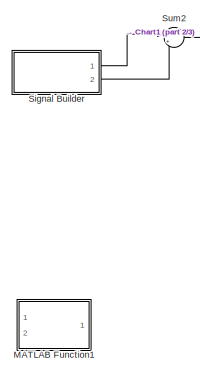
[diagram: root canvas - part 1/3, middle left region]
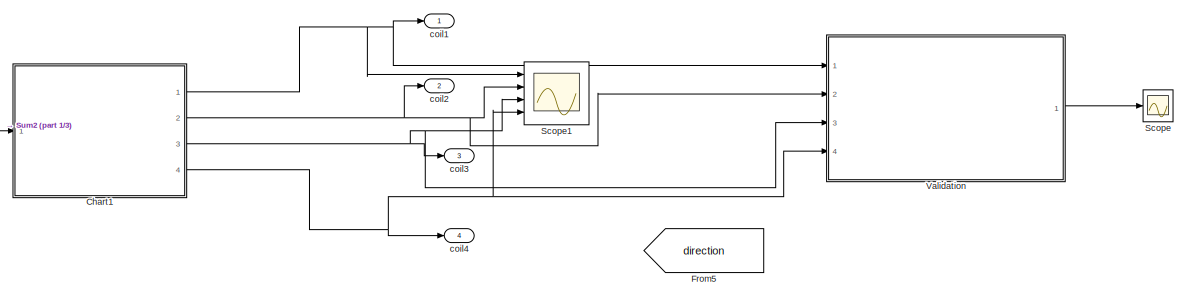
[diagram: root canvas - part 2/3, top center region]
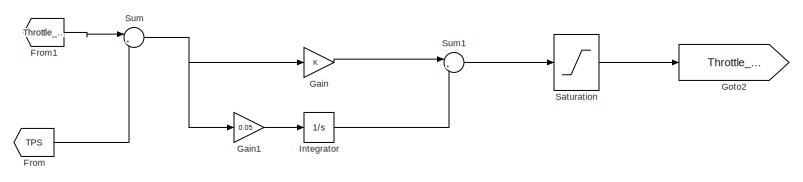
[diagram: root canvas - part 3/3, bottom left region]
MODEL slx_6142f757110b
KIND model
CONFIG AbsTol = auto
CONFIG FixedStep = auto
CONFIG MaxStep = auto
CONFIG MinStep = auto
CONFIG RelTol = 1e-3
CONFIG SampleTimeConstraint = Unconstrained
CONFIG Solver = ode45
CONFIG SolverMode = Auto
CONFIG SolverName = ode45
CONFIG StartTime = 0.0
CONFIG StopTime = 10.0
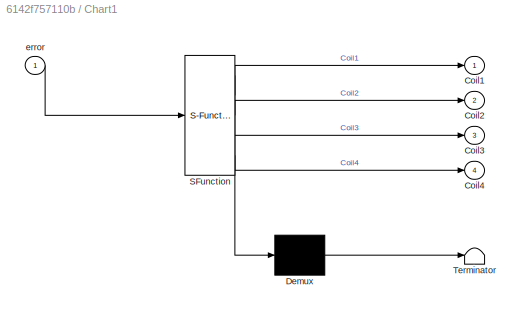
BLOCK [SubSystem] Chart1
  ErrorFcn = Stateflow.Translate.translate
  PermitHierarchicalResolution = ExplicitOnly
  Ports = [1, 4]
  RequestExecContextInheritance = off
  SFBlockType = Chart
  TreatAsAtomicUnit = on
BLOCK [Demux] Chart1/ Demux 
  Outputs = 1
  Ports = [1, 1]
BLOCK [S-Function] Chart1/ SFunction 
  FunctionName = sf_sfun
  PortCounts = [1 5]
  Ports = [1, 5]
  Tag = Stateflow S-Function validate_stepper2 10
BLOCK [Terminator] Chart1/ Terminator 
BLOCK [Outport] Chart1/Coil1
  IconDisplay = Port number
BLOCK [Outport] Chart1/Coil2
  IconDisplay = Port number
  Port = 2
BLOCK [Outport] Chart1/Coil3
  IconDisplay = Port number
  Port = 3
BLOCK [Outport] Chart1/Coil4
  IconDisplay = Port number
  Port = 4
BLOCK [Inport] Chart1/error
  IconDisplay = Port number
BLOCK [From] From
  Commented = on
  GotoTag = TPS
BLOCK [From] From1
  Commented = on
  GotoTag = Throttle_request
BLOCK [From] From5
  GotoTag = direction
BLOCK [Gain] Gain
  Commented = on
  OutDataTypeStr = Inherit: Inherit via internal rule
  ParamDataTypeStr = Inherit: Inherit via internal rule
  SaturateOnIntegerOverflow = off
BLOCK [Gain] Gain1
  Commented = on
  Gain = 0.05
  OutDataTypeStr = Inherit: Inherit via internal rule
  ParamDataTypeStr = Inherit: Inherit via internal rule
  SaturateOnIntegerOverflow = off
BLOCK [Goto] Goto2
  Commented = on
  GotoTag = Throttle_command
BLOCK [Integrator] Integrator
  Commented = on
  Ports = [1, 1]
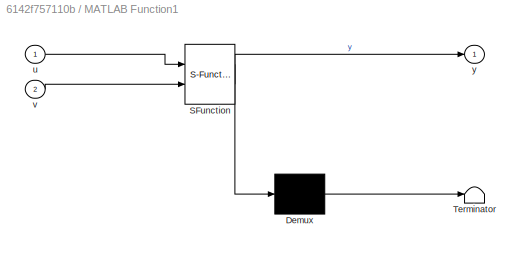
BLOCK [SubSystem] MATLAB Function1
  Commented = on
  ErrorFcn = Stateflow.Translate.translate
  PermitHierarchicalResolution = ExplicitOnly
  Ports = [2, 1]
  RequestExecContextInheritance = off
  SFBlockType = MATLAB Function
  TreatAsAtomicUnit = on
BLOCK [Demux] MATLAB Function1/ Demux 
  Outputs = 1
  Ports = [1, 1]
BLOCK [S-Function] MATLAB Function1/ SFunction 
  FunctionName = sf_sfun
  PortCounts = [2 2]
  Ports = [2, 2]
  Tag = Stateflow S-Function validate_stepper2 12
BLOCK [Terminator] MATLAB Function1/ Terminator 
BLOCK [Inport] MATLAB Function1/u
  IconDisplay = Port number
BLOCK [Inport] MATLAB Function1/v
  IconDisplay = Port number
  Port = 2
BLOCK [Outport] MATLAB Function1/y
  IconDisplay = Port number
BLOCK [Saturate] Saturation
  Commented = on
  InputPortMap = u0
  LowerLimit = 0
  Ports = [1, 1]
  UpperLimit = 90
BLOCK [Scope] Scope
  Floating = off
  NumInputPorts = 1
  Ports = [1]
BLOCK [Scope] Scope1
  Floating = off
  NumInputPorts = 4
  Ports = [4]
  SaveName = ScopeData1
  YMax = 5~5~5~5
  YMin = -5~-5~-5~-5
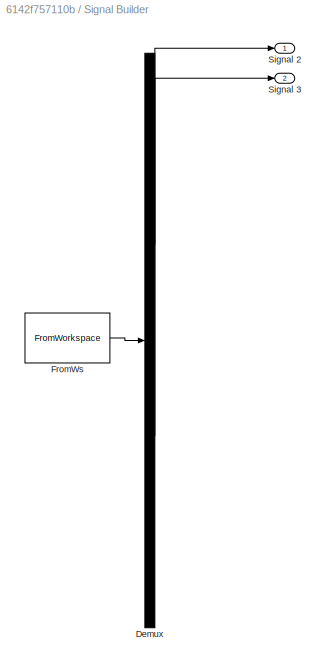
BLOCK [SubSystem] Signal Builder
  ClipboardFcn = sigbuilder_block('clipboard');
  CloseFcn = sigbuilder_block('close');
  ContinueFcn = sigbuilder_block('continue');
  CopyFcn = sigbuilder_block('copy');
  DeleteFcn = sigbuilder_block('delete');
  LoadFcn = sigbuilder_block('load',[8.25 -228 943.5 648 ]);
  MaskHideContents = on
  ModelCloseFcn = sigbuilder_block('modelClose');
  NameChangeFcn = sigbuilder_block('namechange');
  OpenFcn = sigbuilder_block('open',[451.5 -122.25 550.5 387.75 ]);
  PauseFcn = sigbuilder_block('pause');
  Ports = [0, 2]
  PreSaveFcn = sigbuilder_block('preSave');
  RequestExecContextInheritance = off
  StartFcn = sigbuilder_block('start');
  StopFcn = sigbuilder_block('stop');
  Tag = STV Subsys
BLOCK [Demux] Signal Builder/Demux
  Outputs = 2
  Ports = [1, 2]
  Tag = STV Demux
BLOCK [FromWorkspace] Signal Builder/FromWs
  SampleTime = 0
  Tag = STV FromWs
  VariableName = tuvar
  ZeroCross = on
BLOCK [Outport] Signal Builder/Signal 2
  IconDisplay = Port number
  Tag = STV Outport
BLOCK [Outport] Signal Builder/Signal 3
  IconDisplay = Port number
  Port = 2
  Tag = STV Outport
BLOCK [Sum] Sum
  Commented = on
  IconShape = round
  InputSameDT = off
  Inputs = |+-
  OutDataTypeStr = Inherit: Inherit via internal rule
  Ports = [2, 1]
  SaturateOnIntegerOverflow = off
BLOCK [Sum] Sum1
  Commented = on
  IconShape = round
  InputSameDT = off
  Inputs = |++
  OutDataTypeStr = Inherit: Inherit via internal rule
  Ports = [2, 1]
  SaturateOnIntegerOverflow = off
BLOCK [Sum] Sum2
  IconShape = round
  InputSameDT = off
  Inputs = |+-
  OutDataTypeStr = Inherit: Inherit via internal rule
  Ports = [2, 1]
  SaturateOnIntegerOverflow = off
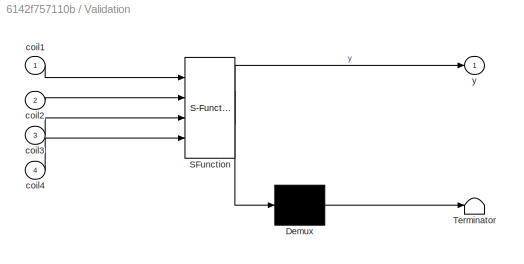
BLOCK [SubSystem] Validation
  ErrorFcn = Stateflow.Translate.translate
  PermitHierarchicalResolution = ExplicitOnly
  Ports = [4, 1]
  RequestExecContextInheritance = off
  SFBlockType = MATLAB Function
  TreatAsAtomicUnit = on
BLOCK [Demux] Validation/ Demux 
  Outputs = 1
  Ports = [1, 1]
BLOCK [S-Function] Validation/ SFunction 
  FunctionName = sf_sfun
  PortCounts = [4 2]
  Ports = [4, 2]
  Tag = Stateflow S-Function validate_stepper2 7
BLOCK [Terminator] Validation/ Terminator 
BLOCK [Inport] Validation/coil1
  IconDisplay = Port number
BLOCK [Inport] Validation/coil2
  IconDisplay = Port number
  Port = 2
BLOCK [Inport] Validation/coil3
  IconDisplay = Port number
  Port = 3
BLOCK [Inport] Validation/coil4
  IconDisplay = Port number
  Port = 4
BLOCK [Outport] Validation/y
  IconDisplay = Port number
BLOCK [Outport] coil1
  IconDisplay = Port number
BLOCK [Outport] coil2
  IconDisplay = Port number
  Port = 2
BLOCK [Outport] coil3
  IconDisplay = Port number
  Port = 3
BLOCK [Outport] coil4
  IconDisplay = Port number
  Port = 4
NET Chart1:1 -> Scope1:1, Validation:1, coil1:1
NET Chart1:2 -> Scope1:2, Validation:2, coil2:1
NET Chart1:3 -> Scope1:3, Validation:3, coil3:1
NET Chart1:4 -> Scope1:4, Validation:4, coil4:1
LINE From1:1 -> Sum:1
LINE From:1 -> Sum:2
LINE Gain1:1 -> Integrator:1
LINE Gain:1 -> Sum1:1
LINE Integrator:1 -> Sum1:2
LINE Saturation:1 -> Goto2:1
LINE Signal Builder:1 -> Sum2:1
LINE Signal Builder:2 -> Sum2:2
LINE Sum1:1 -> Saturation:1
LINE Sum2:1 -> Chart1:1
NET Sum:1 -> Gain1:1, Gain:1
LINE Validation:1 -> Scope:1
note: NET lines group one-source signal fan-out (src -> all destinations, sorted); 1:1 wires keep LINE
CHART Validation states=1 transitions=1
  STATE_LABEL 'eML_blk_kernel()'
  STATE_LABEL 'SCRIPT:\nfunction y = fcn(coil1,coil2,coil3,coil4)\n%#codegen\n    if coil1==0&&coil2==0&&coil3==0&&coil4==0\n    y=0;\n    elseif coil1==1&&coil2==0&&coil3==1&&coil4==0\n    y=1;\n    elseif coil1==1&&coil2==0&&coil3==0&&coil4==0\n    y=2;\n    elseif coil1==1&&coil2==0&&coil3==0&&coil4==1\n    y=3;\n    elseif coil1==0&&coil2==0&&coil3==0&&coil4==1\n    y=4;\n    elseif coil1==0&&coil2==1&&coil3==0&&coil4==1...<+221ch>'
CHART Chart1 states=10 transitions=17
  STATE_LABEL 'CW'
  STATE_LABEL 'step3\nduring:\nCoil1=1\nCoil2=0\nCoil3=0\nCoil4=1'
  STATE_LABEL 'step2\nduring:\nCoil1=1\nCoil2=0\nCoil3=0\nCoil4=0'
  STATE_LABEL 'Step0\nduring:\nCoil1=0\nCoil2=0\nCoil3=0\nCoil4=0'
  STATE_LABEL 'step1\nduring:\nCoil1=1\nCoil2=0\nCoil3=1\nCoil4=0'
  STATE_LABEL 'step6\nduring:\nCoil1=0\nCoil2=1\nCoil3=0\nCoil4=0'
  STATE_LABEL 'step5\nduring:\nCoil1=0\nCoil2=1\nCoil3=0\nCoil4=1'
  STATE_LABEL 'step4\nduring:\nCoil1=0\nCoil2=0\nCoil3=0\nCoil4=1'
  STATE_LABEL 'step8\nduring:\nCoil1=0\nCoil2=0\nCoil3=1\nCoil4=0'
  STATE_LABEL 'step7\nduring:\nCoil1=0\nCoil2=1\nCoil3=1\nCoil4=0'
  STATE_LABEL '[error>=12.5]'
  STATE_LABEL '[error>=12.5]'
  STATE_LABEL '[error>=12.5]'
  STATE_LABEL '[error<-12.5]'
  STATE_LABEL '[error<-12.5]'
  STATE_LABEL '[error<-12.5]'
  STATE_LABEL '[error>=12.5]'
  STATE_LABEL '[error<-12.5]'
  STATE_LABEL '[error>=12.5]'
  STATE_LABEL '[error>=12.5]'
  STATE_LABEL '[error<-12.5]'
  STATE_LABEL '[error<-12.5]'
  STATE_LABEL '[error>=12.5]'
  STATE_LABEL '[error<-12.5]'
  STATE_LABEL '[error>=12.5]'
  STATE_LABEL '[error<-12.5]'
  STATE_LABEL 'step3\nduring:\nCoil1=1\nCoil2=0\nCoil3=0\nCoil4=1'
  STATE_LABEL 'step2\nduring:\nCoil1=1\nCoil2=0\nCoil3=0\nCoil4=0'
  STATE_LABEL 'Step0\nduring:\nCoil1=0\nCoil2=0\nCoil3=0\nCoil4=0'
  STATE_LABEL 'step1\nduring:\nCoil1=1\nCoil2=0\nCoil3=1\nCoil4=0'
  STATE_LABEL 'step6\nduring:\nCoil1=0\nCoil2=1\nCoil3=0\nCoil4=0'
  STATE_LABEL 'step5\nduring:\nCoil1=0\nCoil2=1\nCoil3=0\nCoil4=1'
  STATE_LABEL 'step4\nduring:\nCoil1=0\nCoil2=0\nCoil3=0\nCoil4=1'
  STATE_LABEL 'step8\nduring:\nCoil1=0\nCoil2=0\nCoil3=1\nCoil4=0'
  STATE_LABEL 'step7\nduring:\nCoil1=0\nCoil2=1\nCoil3=1\nCoil4=0'
CHART MATLAB Function1 states=1 transitions=1
  STATE_LABEL 'eML_blk_kernel()'
  STATE_LABEL 'SCRIPT:\nfunction y = fcn(u,v)\n%#codegen\nDiff=u-v;\nif abs(Diff)>=1\n    if Diff>0\n        y=1;\n    elseif Diff<0\n        y=0;\n    else\n        y=-1;\n    end\nelse \n    y=-1;\nend\nend\n\n\n'
